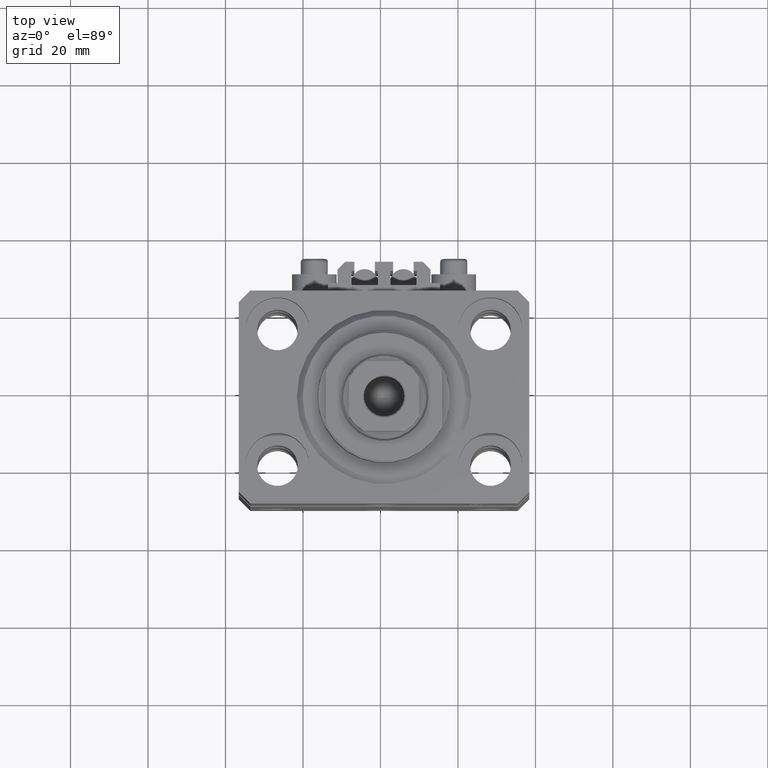
[diagram: clean part render]
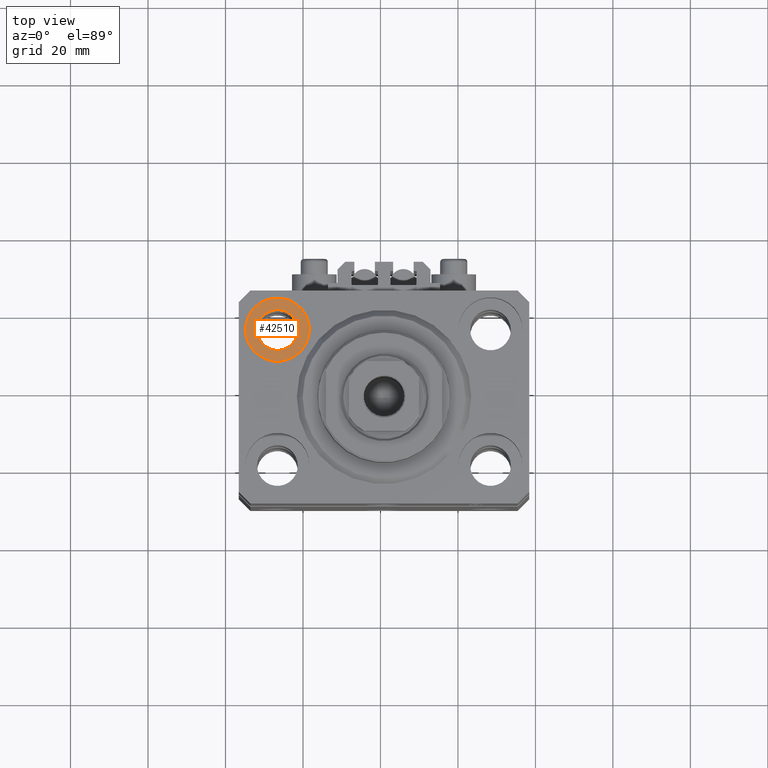
[diagram: same view with one face highlighted and labeled with its STEP entity id]
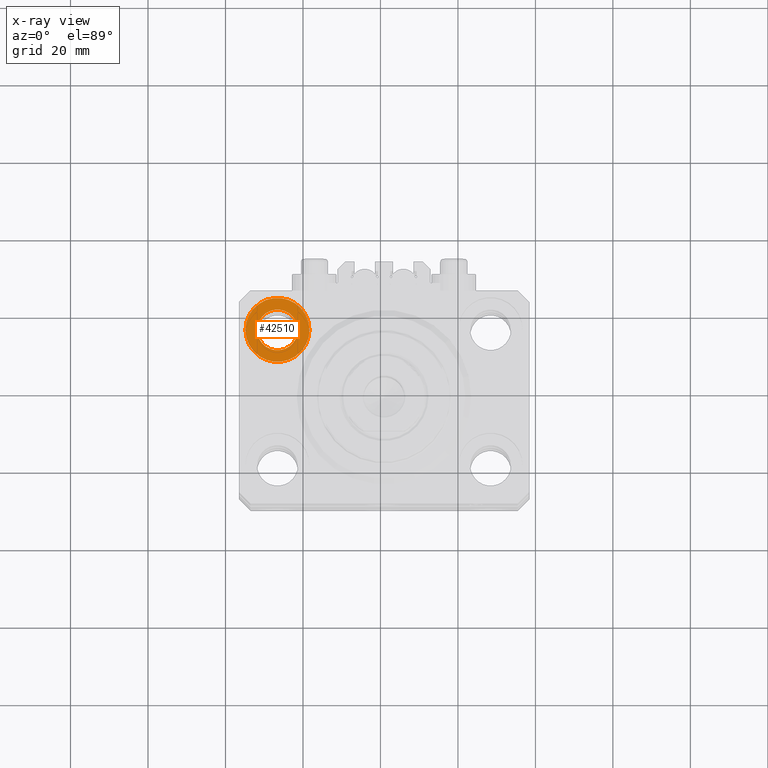
[diagram: x-ray of the same camera — body ghosted, the highlighted face saturated]
A machine part, top view. The second image highlights one B-rep face of the part: STEP entity #42510.
The next image is the same camera in x-ray: the body ghosted, the highlighted face saturated — about 0% of this face is hidden behind the body in this view.
In plain terms, the highlighted planar face has unit normal (0, 0, 1).
Its self-contained STEP definition (entity closure, byte-faithful):
#3375 = DIRECTION ( 'NONE',  ( 0.000000000000000000, 0.000000000000000000, 1.000000000000000000 ) ) ;
#4875 = DIRECTION ( 'NONE',  ( 0.000000000000000000, 0.000000000000000000, 1.000000000000000000 ) ) ;
#5419 = AXIS2_PLACEMENT_3D ( 'NONE', #47872, #46931, #28880 ) ;
#8457 = CIRCLE ( 'NONE', #10025, 5.250000000000000888 ) ;
#9156 = CARTESIAN_POINT ( 'NONE',  ( -27.50000000000000355, 17.50000000000000000, -11.00000000000000000 ) ) ;
#9747 = EDGE_CURVE ( 'NONE', #15102, #36375, #15391, .T. ) ;
#10025 = AXIS2_PLACEMENT_3D ( 'NONE', #9156, #28137, #28375 ) ;
#13378 = ORIENTED_EDGE ( 'NONE', *, *, #20790, .F. ) ;
#14190 = VERTEX_POINT ( 'NONE', #40897 ) ;
#15102 = VERTEX_POINT ( 'NONE', #15142 ) ;
#15142 = CARTESIAN_POINT ( 'NONE',  ( -22.25000000000000355, 17.50000000000000000, -11.00000000000000000 ) ) ;
#15391 = CIRCLE ( 'NONE', #20037, 5.250000000000000888 ) ;
#16146 = VERTEX_POINT ( 'NONE', #20283 ) ;
#17554 = CARTESIAN_POINT ( 'NONE',  ( -27.50000000000000355, 17.50000000000000000, -11.00000000000000000 ) ) ;
#17867 = CARTESIAN_POINT ( 'NONE',  ( -32.75000000000000000, 17.50000000000000000, -11.00000000000000000 ) ) ;
#17868 = CIRCLE ( 'NONE', #5419, 8.250000000000000000 ) ;
#18479 = CARTESIAN_POINT ( 'NONE',  ( -27.50000000000000355, 17.50000000000000000, -11.00000000000000000 ) ) ;
#19036 = EDGE_LOOP ( 'NONE', ( #22471, #13378 ) ) ;
#19529 = ORIENTED_EDGE ( 'NONE', *, *, #38643, .T. ) ;
#19721 = FACE_OUTER_BOUND ( 'NONE', #35267, .T. ) ;
#20037 = AXIS2_PLACEMENT_3D ( 'NONE', #17554, #20715, #35560 ) ;
#20232 = AXIS2_PLACEMENT_3D ( 'NONE', #38226, #4875, #35287 ) ;
#20283 = CARTESIAN_POINT ( 'NONE',  ( -19.25000000000000355, 17.50000000000000000, -11.00000000000000000 ) ) ;
#20715 = DIRECTION ( 'NONE',  ( 0.000000000000000000, 0.000000000000000000, 1.000000000000000000 ) ) ;
#20790 = EDGE_CURVE ( 'NONE', #36375, #15102, #8457, .T. ) ;
#22471 = ORIENTED_EDGE ( 'NONE', *, *, #9747, .F. ) ;
#23365 = FACE_BOUND ( 'NONE', #19036, .T. ) ;
#23581 = ORIENTED_EDGE ( 'NONE', *, *, #26788, .T. ) ;
#26788 = EDGE_CURVE ( 'NONE', #16146, #14190, #17868, .T. ) ;
#28137 = DIRECTION ( 'NONE',  ( 0.000000000000000000, 0.000000000000000000, 1.000000000000000000 ) ) ;
#28375 = DIRECTION ( 'NONE',  ( 1.000000000000000000, 0.000000000000000000, 0.000000000000000000 ) ) ;
#28880 = DIRECTION ( 'NONE',  ( 1.000000000000000000, 0.000000000000000000, 0.000000000000000000 ) ) ;
#29807 = AXIS2_PLACEMENT_3D ( 'NONE', #18479, #3375, #36730 ) ;
#35267 = EDGE_LOOP ( 'NONE', ( #23581, #19529 ) ) ;
#35287 = DIRECTION ( 'NONE',  ( 1.000000000000000000, 0.000000000000000000, -0.000000000000000000 ) ) ;
#35560 = DIRECTION ( 'NONE',  ( 1.000000000000000000, 0.000000000000000000, 0.000000000000000000 ) ) ;
#36375 = VERTEX_POINT ( 'NONE', #17867 ) ;
#36730 = DIRECTION ( 'NONE',  ( 1.000000000000000000, 0.000000000000000000, 0.000000000000000000 ) ) ;
#38226 = CARTESIAN_POINT ( 'NONE',  ( -27.50000000000000355, 17.50000000000000000, -11.00000000000000000 ) ) ;
#38643 = EDGE_CURVE ( 'NONE', #14190, #16146, #47687, .T. ) ;
#40897 = CARTESIAN_POINT ( 'NONE',  ( -35.75000000000000711, 17.50000000000000000, -11.00000000000000000 ) ) ;
#42510 = ADVANCED_FACE ( 'NONE', ( #23365, #19721 ), #46032, .T. ) ;
#46032 = PLANE ( 'NONE',  #20232 ) ;
#46931 = DIRECTION ( 'NONE',  ( 0.000000000000000000, 0.000000000000000000, 1.000000000000000000 ) ) ;
#47687 = CIRCLE ( 'NONE', #29807, 8.250000000000000000 ) ;
#47872 = CARTESIAN_POINT ( 'NONE',  ( -27.50000000000000355, 17.50000000000000000, -11.00000000000000000 ) ) ;